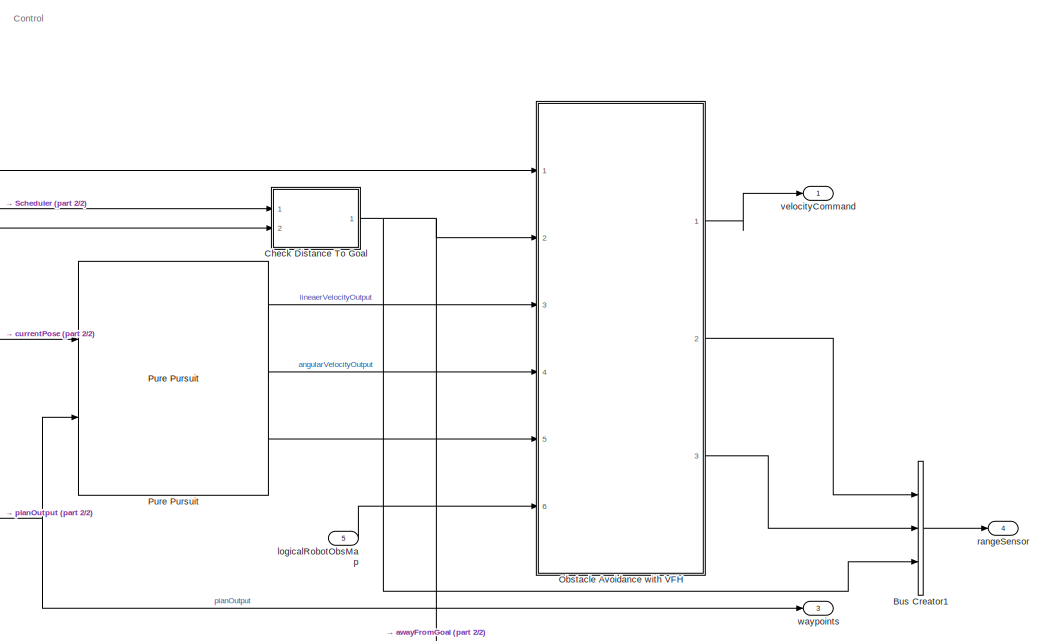
[diagram: root canvas - part 1/2, right side, full height]
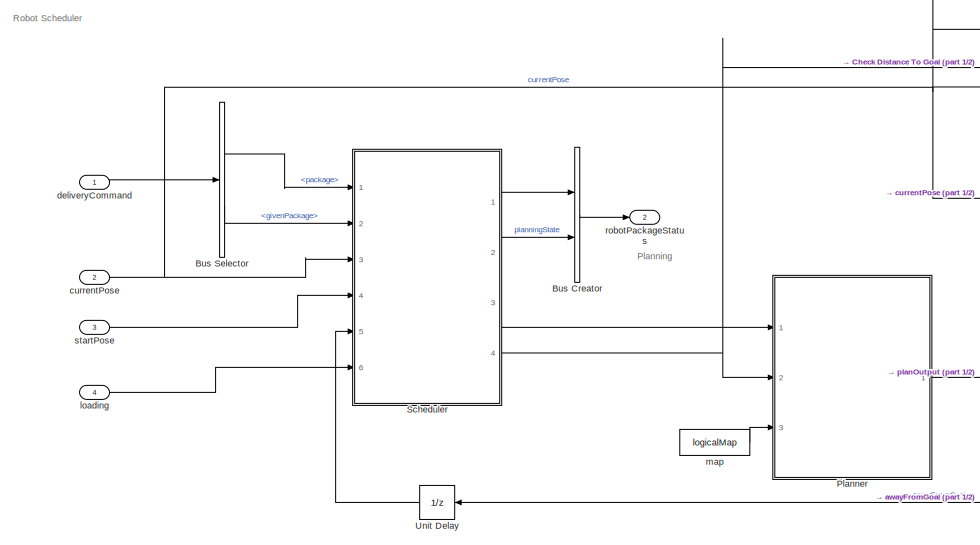
[diagram: root canvas - part 2/2, left side, full height]
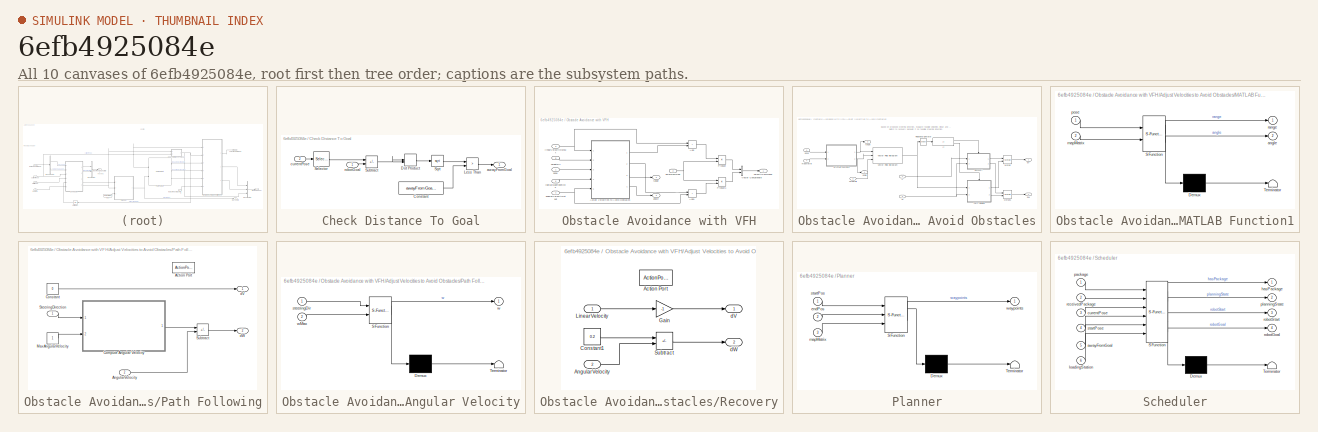
[diagram: thumbnail index - all 10 canvases of the model, root first then tree order]
MODEL slx_6efb4925084e
KIND model
CONFIG AbsTol = auto
CONFIG EnableMultiTasking = off
CONFIG FixedStep = 0.1
CONFIG InitFcn = set_param('robotController', 'ForceConsistencyChecking', 'off');
CONFIG MaxStep = auto
CONFIG MinStep = auto
CONFIG PostLoadFcn = set_param(gcs, 'ForceConsistencyChecking', 'off');
CONFIG RelTol = 1e-3
CONFIG SampleTimeConstraint = Unconstrained
CONFIG SolverName = FixedStepAuto
CONFIG StartTime = 0.0
CONFIG StopTime = 10.0
BLOCK [BusCreator] Bus Creator
  DisplayOption = bar
  InheritFromInputs = off
  Inputs = 2
  NonVirtualBus = on
  OutDataTypeStr = Bus: RobotPackageStatus
  Ports = [2, 1]
BLOCK [BusCreator] Bus Creator1
  DisplayOption = bar
  InheritFromInputs = on
  Inputs = 3
  NonVirtualBus = on
  OutDataTypeStr = Bus: RangeSensor
  Ports = [3, 1]
BLOCK [BusSelector] Bus Selector
  OutputSignals = package,givenPackage
  Ports = [1, 2]
BLOCK [SubSystem] Check Distance To Goal
  Ports = [2, 1]
  RequestExecContextInheritance = off
BLOCK [Constant] Check Distance To Goal/Constant
  Value = awayFromGoalThresh
BLOCK [DotProduct] Check Distance To Goal/Dot Product
  OutDataTypeStr = Inherit: Inherit via internal rule
BLOCK [RelationalOperator] Check Distance To Goal/Less Than
  InputSameDT = off
  Operator = >
  OutDataTypeStr = boolean
  Ports = [2, 1]
  RndMeth = Simplest
BLOCK [Selector] Check Distance To Goal/Selector
  IndexOptions = Index vector (dialog)
  Indices = [1 2]
  InputPortWidth = 3
  OutputSizes = 1
  Ports = [1, 1]
BLOCK [Sqrt] Check Distance To Goal/Sqrt
BLOCK [Sum] Check Distance To Goal/Subtract
  IconShape = rectangular
  Inputs = +-
  Ports = [2, 1]
BLOCK [Outport] Check Distance To Goal/awayFromGoal
  OutDataTypeStr = boolean
BLOCK [Inport] Check Distance To Goal/currentPose
  Port = 2
BLOCK [Inport] Check Distance To Goal/robotGoal
BLOCK [SubSystem] Obstacle Avoidance with VFH
  Ports = [6, 3]
  RequestExecContextInheritance = off
BLOCK [Sum] Obstacle Avoidance with VFH/Add
  IconShape = rectangular
  Ports = [2, 1]
BLOCK [Sum] Obstacle Avoidance with VFH/Add1
  IconShape = rectangular
  Ports = [2, 1]
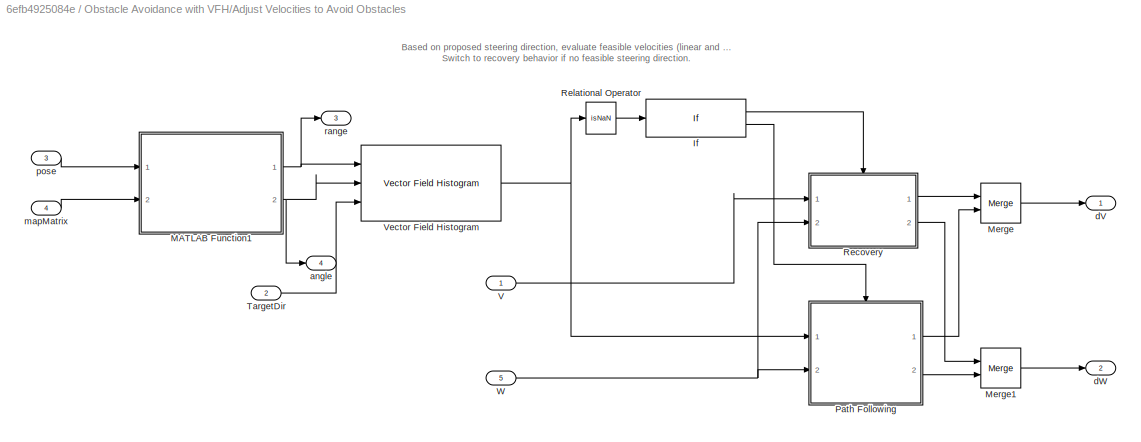
BLOCK [SubSystem] Obstacle Avoidance with VFH/Adjust Velocities to Avoid Obstacles
  Ports = [5, 4]
  RequestExecContextInheritance = off
BLOCK [If] Obstacle Avoidance with VFH/Adjust Velocities to Avoid Obstacles/If
  IfExpression = u1 == 1
  Ports = [1, 2]
BLOCK [SubSystem] Obstacle Avoidance with VFH/Adjust Velocities to Avoid Obstacles/MATLAB Function1
  ErrorFcn = Stateflow.Translate.translate
  PermitHierarchicalResolution = ExplicitOnly
  Ports = [2, 2]
  RequestExecContextInheritance = off
  SFBlockType = MATLAB Function
  TreatAsAtomicUnit = on
BLOCK [Demux] Obstacle Avoidance with VFH/Adjust Velocities to Avoid Obstacles/MATLAB Function1/ Demux 
  Outputs = 1
  Ports = [1, 1]
BLOCK [S-Function] Obstacle Avoidance with VFH/Adjust Velocities to Avoid Obstacles/MATLAB Function1/ SFunction 
  EnableBusSupport = on
  FunctionName = sf_sfun
  PortCounts = [2 3]
  Ports = [2, 3]
  SFcnIsStateOwnerBlock = off
  SFunctionDeploymentMode = off
  Tag = Stateflow S-Function 4
BLOCK [Terminator] Obstacle Avoidance with VFH/Adjust Velocities to Avoid Obstacles/MATLAB Function1/ Terminator 
BLOCK [Outport] Obstacle Avoidance with VFH/Adjust Velocities to Avoid Obstacles/MATLAB Function1/angle
  Port = 2
BLOCK [Inport] Obstacle Avoidance with VFH/Adjust Velocities to Avoid Obstacles/MATLAB Function1/mapMatrix
  Port = 2
BLOCK [Inport] Obstacle Avoidance with VFH/Adjust Velocities to Avoid Obstacles/MATLAB Function1/pose
BLOCK [Outport] Obstacle Avoidance with VFH/Adjust Velocities to Avoid Obstacles/MATLAB Function1/range
BLOCK [Merge] Obstacle Avoidance with VFH/Adjust Velocities to Avoid Obstacles/Merge
  Ports = [2, 1]
BLOCK [Merge] Obstacle Avoidance with VFH/Adjust Velocities to Avoid Obstacles/Merge1
  Ports = [2, 1]
BLOCK [SubSystem] Obstacle Avoidance with VFH/Adjust Velocities to Avoid Obstacles/Path Following
  Ports = [2, 2, 0, 0, 0, 0, 0, 1]
  RequestExecContextInheritance = off
  TreatAsAtomicUnit = on
BLOCK [ActionPort] Obstacle Avoidance with VFH/Adjust Velocities to Avoid Obstacles/Path Following/Action Port
  ActionPortLabel = else
BLOCK [Inport] Obstacle Avoidance with VFH/Adjust Velocities to Avoid Obstacles/Path Following/AngularVelocity
  Port = 2
BLOCK [SubSystem] Obstacle Avoidance with VFH/Adjust Velocities to Avoid Obstacles/Path Following/Compute Angular Velocity
  ErrorFcn = Stateflow.Translate.translate
  PermitHierarchicalResolution = ExplicitOnly
  Ports = [2, 1]
  RequestExecContextInheritance = off
  SFBlockType = MATLAB Function
  TreatAsAtomicUnit = on
BLOCK [Demux] Obstacle Avoidance with VFH/Adjust Velocities to Avoid Obstacles/Path Following/Compute Angular Velocity/ Demux 
  Outputs = 1
  Ports = [1, 1]
BLOCK [S-Function] Obstacle Avoidance with VFH/Adjust Velocities to Avoid Obstacles/Path Following/Compute Angular Velocity/ SFunction 
  EnableBusSupport = on
  FunctionName = sf_sfun
  PortCounts = [2 2]
  Ports = [2, 2]
  SFcnIsStateOwnerBlock = off
  SFunctionDeploymentMode = off
  Tag = Stateflow S-Function 5
BLOCK [Terminator] Obstacle Avoidance with VFH/Adjust Velocities to Avoid Obstacles/Path Following/Compute Angular Velocity/ Terminator 
BLOCK [Inport] Obstacle Avoidance with VFH/Adjust Velocities to Avoid Obstacles/Path Following/Compute Angular Velocity/steeringDir
BLOCK [Outport] Obstacle Avoidance with VFH/Adjust Velocities to Avoid Obstacles/Path Following/Compute Angular Velocity/w
  VectorParamsAs1DForOutWhenUnconnected = off
BLOCK [Inport] Obstacle Avoidance with VFH/Adjust Velocities to Avoid Obstacles/Path Following/Compute Angular Velocity/wMax
  Port = 2
BLOCK [Constant] Obstacle Avoidance with VFH/Adjust Velocities to Avoid Obstacles/Path Following/Constant
  Value = 0
BLOCK [Constant] Obstacle Avoidance with VFH/Adjust Velocities to Avoid Obstacles/Path Following/MaxAngularVelocity
BLOCK [Inport] Obstacle Avoidance with VFH/Adjust Velocities to Avoid Obstacles/Path Following/SteeringDirection
BLOCK [Sum] Obstacle Avoidance with VFH/Adjust Velocities to Avoid Obstacles/Path Following/Subtract
  IconShape = rectangular
  Inputs = +-
  Ports = [2, 1]
BLOCK [Outport] Obstacle Avoidance with VFH/Adjust Velocities to Avoid Obstacles/Path Following/dV
  VectorParamsAs1DForOutWhenUnconnected = off
BLOCK [Outport] Obstacle Avoidance with VFH/Adjust Velocities to Avoid Obstacles/Path Following/dW
  Port = 2
  VectorParamsAs1DForOutWhenUnconnected = off
BLOCK [SubSystem] Obstacle Avoidance with VFH/Adjust Velocities to Avoid Obstacles/Recovery
  Ports = [2, 2, 0, 0, 0, 0, 0, 1]
  RequestExecContextInheritance = off
  TreatAsAtomicUnit = on
BLOCK [ActionPort] Obstacle Avoidance with VFH/Adjust Velocities to Avoid Obstacles/Recovery/Action Port
  ActionPortLabel = if(u1 == 1)
BLOCK [Inport] Obstacle Avoidance with VFH/Adjust Velocities to Avoid Obstacles/Recovery/AngularVelocity
  Port = 2
BLOCK [Constant] Obstacle Avoidance with VFH/Adjust Velocities to Avoid Obstacles/Recovery/Constant1
  Value = 0.2
BLOCK [Gain] Obstacle Avoidance with VFH/Adjust Velocities to Avoid Obstacles/Recovery/Gain
  Gain = -1
BLOCK [Inport] Obstacle Avoidance with VFH/Adjust Velocities to Avoid Obstacles/Recovery/LinearVelocity
BLOCK [Sum] Obstacle Avoidance with VFH/Adjust Velocities to Avoid Obstacles/Recovery/Subtract
  IconShape = rectangular
  Inputs = +-
  Ports = [2, 1]
BLOCK [Outport] Obstacle Avoidance with VFH/Adjust Velocities to Avoid Obstacles/Recovery/dV
  VectorParamsAs1DForOutWhenUnconnected = off
BLOCK [Outport] Obstacle Avoidance with VFH/Adjust Velocities to Avoid Obstacles/Recovery/dW
  Port = 2
  VectorParamsAs1DForOutWhenUnconnected = off
BLOCK [RelationalOperator] Obstacle Avoidance with VFH/Adjust Velocities to Avoid Obstacles/Relational Operator
  InputSameDT = off
  Operator = isNaN
  OutDataTypeStr = boolean
  Ports = [1, 1]
  RndMeth = Simplest
BLOCK [Inport] Obstacle Avoidance with VFH/Adjust Velocities to Avoid Obstacles/TargetDir
  Port = 2
BLOCK [Inport] Obstacle Avoidance with VFH/Adjust Velocities to Avoid Obstacles/V
BLOCK [Reference] Obstacle Avoidance with VFH/Adjust Velocities to Avoid Obstacles/Vector Field Histogram  REF=robotalgslib/Vector Field Histogram
  Ports = [3, 1]
  SourceBlock = robotalgslib/Vector Field Histogram
  SourceProductBaseCode = NV,RO
  SourceType = nav.slalgs.internal.VectorFieldHistogram
BLOCK [Inport] Obstacle Avoidance with VFH/Adjust Velocities to Avoid Obstacles/W
  Port = 5
BLOCK [Outport] Obstacle Avoidance with VFH/Adjust Velocities to Avoid Obstacles/angle
  Port = 4
  VectorParamsAs1DForOutWhenUnconnected = off
BLOCK [Outport] Obstacle Avoidance with VFH/Adjust Velocities to Avoid Obstacles/dV
  VectorParamsAs1DForOutWhenUnconnected = off
BLOCK [Outport] Obstacle Avoidance with VFH/Adjust Velocities to Avoid Obstacles/dW
  Port = 2
  VectorParamsAs1DForOutWhenUnconnected = off
BLOCK [Inport] Obstacle Avoidance with VFH/Adjust Velocities to Avoid Obstacles/mapMatrix
  Port = 4
BLOCK [Inport] Obstacle Avoidance with VFH/Adjust Velocities to Avoid Obstacles/pose
  Port = 3
BLOCK [Outport] Obstacle Avoidance with VFH/Adjust Velocities to Avoid Obstacles/range
  Port = 3
  VectorParamsAs1DForOutWhenUnconnected = off
BLOCK [Product] Obstacle Avoidance with VFH/Product
  Ports = [2, 1]
BLOCK [Product] Obstacle Avoidance with VFH/Product1
  Ports = [2, 1]
BLOCK [Inport] Obstacle Avoidance with VFH/TargetDir
  Port = 5
BLOCK [Concatenate] Obstacle Avoidance with VFH/Vector Concatenate
  Ports = [2, 1]
BLOCK [Outport] Obstacle Avoidance with VFH/angle
  Port = 3
BLOCK [Inport] Obstacle Avoidance with VFH/angularVelocityOutput
  Port = 4
BLOCK [Inport] Obstacle Avoidance with VFH/awayFromGoal
  OutDataTypeStr = boolean
  Port = 2
BLOCK [Inport] Obstacle Avoidance with VFH/linearVelocityOutput
  Port = 3
BLOCK [Inport] Obstacle Avoidance with VFH/logicalMapRobotObs
  Port = 6
BLOCK [Inport] Obstacle Avoidance with VFH/pose
BLOCK [Outport] Obstacle Avoidance with VFH/range
  Port = 2
BLOCK [Outport] Obstacle Avoidance with VFH/velocityCommand
  OutDataTypeStr = double
BLOCK [SubSystem] Planner
  ErrorFcn = Stateflow.Translate.translate
  PermitHierarchicalResolution = ExplicitOnly
  Ports = [3, 1]
  RequestExecContextInheritance = off
  SFBlockType = MATLAB Function
  TreatAsAtomicUnit = on
BLOCK [Demux] Planner/ Demux 
  Outputs = 1
  Ports = [1, 1]
BLOCK [S-Function] Planner/ SFunction 
  EnableBusSupport = on
  FunctionName = sf_sfun
  PortCounts = [3 2]
  Ports = [3, 2]
  SFcnIsStateOwnerBlock = off
  SFunctionDeploymentMode = off
  Tag = Stateflow S-Function 1
BLOCK [Terminator] Planner/ Terminator 
BLOCK [Inport] Planner/endPos
  Port = 2
BLOCK [Inport] Planner/mapMatrix
  Port = 3
BLOCK [Inport] Planner/startPos
BLOCK [Outport] Planner/waypoints
  VectorParamsAs1DForOutWhenUnconnected = off
BLOCK [Reference] Pure Pursuit  REF=robotalgslib/Pure Pursuit
  Ports = [2, 3]
  SourceBlock = robotalgslib/Pure Pursuit
  SourceProductBaseCode = NV,RO
  SourceType = nav.slalgs.internal.PurePursuit
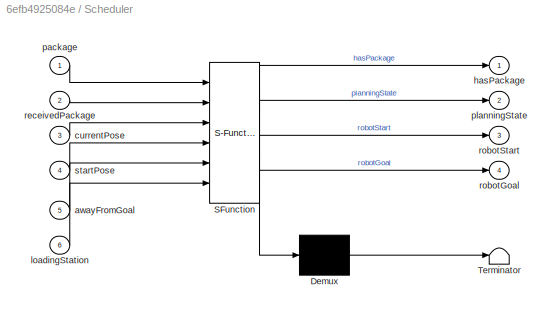
BLOCK [SubSystem] Scheduler
  ErrorFcn = Stateflow.Translate.translate
  PermitHierarchicalResolution = ExplicitOnly
  Ports = [6, 4]
  Priority = 2
  RequestExecContextInheritance = off
  SFBlockType = Chart
BLOCK [Demux] Scheduler/ Demux 
  Outputs = 1
  Ports = [1, 1]
BLOCK [S-Function] Scheduler/ SFunction 
  EnableBusSupport = on
  FunctionName = sf_sfun
  Parameters = unloadingStations
  PortCounts = [6 5]
  Ports = [6, 5]
  SFcnIsStateOwnerBlock = off
  SFunctionDeploymentMode = off
  Tag = Stateflow S-Function 2
BLOCK [Terminator] Scheduler/ Terminator 
BLOCK [Inport] Scheduler/awayFromGoal
  Port = 5
BLOCK [Inport] Scheduler/currentPose
  Port = 3
BLOCK [Outport] Scheduler/hasPackage
  VectorParamsAs1DForOutWhenUnconnected = off
BLOCK [Inport] Scheduler/loadingStation
  Port = 6
BLOCK [Inport] Scheduler/package
BLOCK [Outport] Scheduler/planningState
  Port = 2
  VectorParamsAs1DForOutWhenUnconnected = off
BLOCK [Inport] Scheduler/receivedPackage
  Port = 2
BLOCK [Outport] Scheduler/robotGoal
  Port = 4
  VectorParamsAs1DForOutWhenUnconnected = off
BLOCK [Outport] Scheduler/robotStart
  Port = 3
  VectorParamsAs1DForOutWhenUnconnected = off
BLOCK [Inport] Scheduler/startPose
  Port = 4
BLOCK [UnitDelay] Unit Delay
  HasFrameUpgradeWarning = on
  NameLocation = top
  SampleTime = -1
BLOCK [Inport] currentPose
  Port = 2
  PortDimensions = [3, 1]
BLOCK [Inport] deliveryCommand
  BusOutputAsStruct = on
  OutDataTypeStr = Bus: RobotDeliverCommand
BLOCK [Inport] loading
  Port = 4
BLOCK [Inport] logicalRobotObsMap
  OutDataTypeStr = boolean
  Port = 5
  PortDimensions = [100,100]
BLOCK [Constant] map
  Value = logicalMap
BLOCK [Outport] rangeSensor
  BusOutputAsStruct = on
  OutDataTypeStr = Bus: RangeSensor
  Port = 4
BLOCK [Outport] robotPackageStatus
  BusOutputAsStruct = on
  OutDataTypeStr = Bus: RobotPackageStatus
  Port = 2
BLOCK [Inport] startPose
  Port = 3
BLOCK [Outport] velocityCommand
BLOCK [Outport] waypoints
  Port = 3
ANNOTATION (root): Control
ANNOTATION (root): Planning
ANNOTATION (root): Robot Scheduler
ANNOTATION Obstacle Avoidance with VFH/Adjust Velocities to Avoid Obstacles: Based on proposed steering direction, evaluate feasible velocities (linear and angular). Switch to recovery behavior if no feasible steering direction.
LINE Bus Creator1:1 -> rangeSensor:1
LINE Bus Creator:1 -> robotPackageStatus:1
LINE Bus Selector:1 -> Scheduler:1
LINE Bus Selector:2 -> Scheduler:2
LINE Check Distance To Goal/Constant:1 -> Check Distance To Goal/Less Than:2
LINE Check Distance To Goal/Dot Product:1 -> Check Distance To Goal/Sqrt:1
LINE Check Distance To Goal/Less Than:1 -> Check Distance To Goal/awayFromGoal:1
LINE Check Distance To Goal/Selector:1 -> Check Distance To Goal/Subtract:1
LINE Check Distance To Goal/Sqrt:1 -> Check Distance To Goal/Less Than:1
NET Check Distance To Goal/Subtract:1 -> Check Distance To Goal/Dot Product:1, Check Distance To Goal/Dot Product:2
LINE Check Distance To Goal/currentPose:1 -> Check Distance To Goal/Selector:1
LINE Check Distance To Goal/robotGoal:1 -> Check Distance To Goal/Subtract:2
NET Check Distance To Goal:1 -> Bus Creator1:3, Obstacle Avoidance with VFH:2, Unit Delay:1
LINE Obstacle Avoidance with VFH/Add1:1 -> Obstacle Avoidance with VFH/Product1:2
LINE Obstacle Avoidance with VFH/Add:1 -> Obstacle Avoidance with VFH/Product:1
LINE Obstacle Avoidance with VFH/Adjust Velocities to Avoid Obstacles/If:1 -> Obstacle Avoidance with VFH/Adjust Velocities to Avoid Obstacles/Recovery:ifaction
LINE Obstacle Avoidance with VFH/Adjust Velocities to Avoid Obstacles/If:2 -> Obstacle Avoidance with VFH/Adjust Velocities to Avoid Obstacles/Path Following:ifaction
NET Obstacle Avoidance with VFH/Adjust Velocities to Avoid Obstacles/MATLAB Function1:1 -> Obstacle Avoidance with VFH/Adjust Velocities to Avoid Obstacles/Vector Field Histogram:1, Obstacle Avoidance with VFH/Adjust Velocities to Avoid Obstacles/range:1
NET Obstacle Avoidance with VFH/Adjust Velocities to Avoid Obstacles/MATLAB Function1:2 -> Obstacle Avoidance with VFH/Adjust Velocities to Avoid Obstacles/Vector Field Histogram:2, Obstacle Avoidance with VFH/Adjust Velocities to Avoid Obstacles/angle:1
LINE Obstacle Avoidance with VFH/Adjust Velocities to Avoid Obstacles/Merge1:1 -> Obstacle Avoidance with VFH/Adjust Velocities to Avoid Obstacles/dW:1
LINE Obstacle Avoidance with VFH/Adjust Velocities to Avoid Obstacles/Merge:1 -> Obstacle Avoidance with VFH/Adjust Velocities to Avoid Obstacles/dV:1
LINE Obstacle Avoidance with VFH/Adjust Velocities to Avoid Obstacles/Path Following/AngularVelocity:1 -> Obstacle Avoidance with VFH/Adjust Velocities to Avoid Obstacles/Path Following/Subtract:2
LINE Obstacle Avoidance with VFH/Adjust Velocities to Avoid Obstacles/Path Following/Compute Angular Velocity:1 -> Obstacle Avoidance with VFH/Adjust Velocities to Avoid Obstacles/Path Following/Subtract:1
LINE Obstacle Avoidance with VFH/Adjust Velocities to Avoid Obstacles/Path Following/Constant:1 -> Obstacle Avoidance with VFH/Adjust Velocities to Avoid Obstacles/Path Following/dV:1
LINE Obstacle Avoidance with VFH/Adjust Velocities to Avoid Obstacles/Path Following/MaxAngularVelocity:1 -> Obstacle Avoidance with VFH/Adjust Velocities to Avoid Obstacles/Path Following/Compute Angular Velocity:2
LINE Obstacle Avoidance with VFH/Adjust Velocities to Avoid Obstacles/Path Following/SteeringDirection:1 -> Obstacle Avoidance with VFH/Adjust Velocities to Avoid Obstacles/Path Following/Compute Angular Velocity:1
LINE Obstacle Avoidance with VFH/Adjust Velocities to Avoid Obstacles/Path Following/Subtract:1 -> Obstacle Avoidance with VFH/Adjust Velocities to Avoid Obstacles/Path Following/dW:1
LINE Obstacle Avoidance with VFH/Adjust Velocities to Avoid Obstacles/Path Following:1 -> Obstacle Avoidance with VFH/Adjust Velocities to Avoid Obstacles/Merge:2
LINE Obstacle Avoidance with VFH/Adjust Velocities to Avoid Obstacles/Path Following:2 -> Obstacle Avoidance with VFH/Adjust Velocities to Avoid Obstacles/Merge1:2
LINE Obstacle Avoidance with VFH/Adjust Velocities to Avoid Obstacles/Recovery/AngularVelocity:1 -> Obstacle Avoidance with VFH/Adjust Velocities to Avoid Obstacles/Recovery/Subtract:2
LINE Obstacle Avoidance with VFH/Adjust Velocities to Avoid Obstacles/Recovery/Constant1:1 -> Obstacle Avoidance with VFH/Adjust Velocities to Avoid Obstacles/Recovery/Subtract:1
LINE Obstacle Avoidance with VFH/Adjust Velocities to Avoid Obstacles/Recovery/Gain:1 -> Obstacle Avoidance with VFH/Adjust Velocities to Avoid Obstacles/Recovery/dV:1
LINE Obstacle Avoidance with VFH/Adjust Velocities to Avoid Obstacles/Recovery/LinearVelocity:1 -> Obstacle Avoidance with VFH/Adjust Velocities to Avoid Obstacles/Recovery/Gain:1
LINE Obstacle Avoidance with VFH/Adjust Velocities to Avoid Obstacles/Recovery/Subtract:1 -> Obstacle Avoidance with VFH/Adjust Velocities to Avoid Obstacles/Recovery/dW:1
LINE Obstacle Avoidance with VFH/Adjust Velocities to Avoid Obstacles/Recovery:1 -> Obstacle Avoidance with VFH/Adjust Velocities to Avoid Obstacles/Merge:1
LINE Obstacle Avoidance with VFH/Adjust Velocities to Avoid Obstacles/Recovery:2 -> Obstacle Avoidance with VFH/Adjust Velocities to Avoid Obstacles/Merge1:1
LINE Obstacle Avoidance with VFH/Adjust Velocities to Avoid Obstacles/Relational Operator:1 -> Obstacle Avoidance with VFH/Adjust Velocities to Avoid Obstacles/If:1
LINE Obstacle Avoidance with VFH/Adjust Velocities to Avoid Obstacles/TargetDir:1 -> Obstacle Avoidance with VFH/Adjust Velocities to Avoid Obstacles/Vector Field Histogram:3
LINE Obstacle Avoidance with VFH/Adjust Velocities to Avoid Obstacles/V:1 -> Obstacle Avoidance with VFH/Adjust Velocities to Avoid Obstacles/Recovery:1
NET Obstacle Avoidance with VFH/Adjust Velocities to Avoid Obstacles/Vector Field Histogram:1 -> Obstacle Avoidance with VFH/Adjust Velocities to Avoid Obstacles/Path Following:1, Obstacle Avoidance with VFH/Adjust Velocities to Avoid Obstacles/Relational Operator:1
NET Obstacle Avoidance with VFH/Adjust Velocities to Avoid Obstacles/W:1 -> Obstacle Avoidance with VFH/Adjust Velocities to Avoid Obstacles/Path Following:2, Obstacle Avoidance with VFH/Adjust Velocities to Avoid Obstacles/Recovery:2
LINE Obstacle Avoidance with VFH/Adjust Velocities to Avoid Obstacles/mapMatrix:1 -> Obstacle Avoidance with VFH/Adjust Velocities to Avoid Obstacles/MATLAB Function1:2
LINE Obstacle Avoidance with VFH/Adjust Velocities to Avoid Obstacles/pose:1 -> Obstacle Avoidance with VFH/Adjust Velocities to Avoid Obstacles/MATLAB Function1:1
LINE Obstacle Avoidance with VFH/Adjust Velocities to Avoid Obstacles:1 -> Obstacle Avoidance with VFH/Add:2
LINE Obstacle Avoidance with VFH/Adjust Velocities to Avoid Obstacles:2 -> Obstacle Avoidance with VFH/Add1:1
LINE Obstacle Avoidance with VFH/Adjust Velocities to Avoid Obstacles:3 -> Obstacle Avoidance with VFH/range:1
LINE Obstacle Avoidance with VFH/Adjust Velocities to Avoid Obstacles:4 -> Obstacle Avoidance with VFH/angle:1
LINE Obstacle Avoidance with VFH/Product1:1 -> Obstacle Avoidance with VFH/Vector Concatenate:2
LINE Obstacle Avoidance with VFH/Product:1 -> Obstacle Avoidance with VFH/Vector Concatenate:1
LINE Obstacle Avoidance with VFH/TargetDir:1 -> Obstacle Avoidance with VFH/Adjust Velocities to Avoid Obstacles:2
LINE Obstacle Avoidance with VFH/Vector Concatenate:1 -> Obstacle Avoidance with VFH/velocityCommand:1
NET Obstacle Avoidance with VFH/angularVelocityOutput:1 -> Obstacle Avoidance with VFH/Add1:2, Obstacle Avoidance with VFH/Adjust Velocities to Avoid Obstacles:5
NET Obstacle Avoidance with VFH/awayFromGoal:1 -> Obstacle Avoidance with VFH/Product1:1, Obstacle Avoidance with VFH/Product:2
NET Obstacle Avoidance with VFH/linearVelocityOutput:1 -> Obstacle Avoidance with VFH/Add:1, Obstacle Avoidance with VFH/Adjust Velocities to Avoid Obstacles:1
LINE Obstacle Avoidance with VFH/logicalMapRobotObs:1 -> Obstacle Avoidance with VFH/Adjust Velocities to Avoid Obstacles:4
LINE Obstacle Avoidance with VFH/pose:1 -> Obstacle Avoidance with VFH/Adjust Velocities to Avoid Obstacles:3
LINE Obstacle Avoidance with VFH:1 -> velocityCommand:1
LINE Obstacle Avoidance with VFH:2 -> Bus Creator1:1
LINE Obstacle Avoidance with VFH:3 -> Bus Creator1:2
NET Planner:1 -> Pure Pursuit:2, waypoints:1
LINE Pure Pursuit:1 -> Obstacle Avoidance with VFH:3
LINE Pure Pursuit:2 -> Obstacle Avoidance with VFH:4
LINE Pure Pursuit:3 -> Obstacle Avoidance with VFH:5
LINE Scheduler:1 -> Bus Creator:1
LINE Scheduler:2 -> Bus Creator:2
LINE Scheduler:3 -> Planner:1
NET Scheduler:4 -> Check Distance To Goal:1, Planner:2
LINE Unit Delay:1 -> Scheduler:5
NET currentPose:1 -> Check Distance To Goal:2, Obstacle Avoidance with VFH:1, Pure Pursuit:1, Scheduler:3
LINE deliveryCommand:1 -> Bus Selector:1
LINE loading:1 -> Scheduler:6
LINE logicalRobotObsMap:1 -> Obstacle Avoidance with VFH:6
LINE map:1 -> Planner:3
LINE startPose:1 -> Scheduler:4
note: NET lines group one-source signal fan-out (src -> all destinations, sorted); 1:1 wires keep LINE
CHART Planner states=1 transitions=1
  STATE_LABEL 'eML_blk_kernel()'
  STATE_LABEL 'SCRIPT:\nfunction waypoints = planning(startPos, endPos, mapMatrix)\n\npersistent waypointsInternal\npersistent prevStartPos\npersistent prevEndPos\n\n% Set constant parameters\nmaxNumNodes = 100;\n\n% Initialize persistent variables that are used downstream\nif isempty(prevStartPos)\n    prevStartPos = startPos;\nend\n\nif isempty(prevEndPos)\n    prevEndPos = endPos;\nend\n\nisNewPath = (~isequal(prevStartPos, sta...<+1130ch>'
CHART Scheduler states=4 transitions=9
  STATE_LABEL "GoToUnloadingStation\nentry:\nrobotGoal = unloadingStations(package, :)';\nrobotStart = currentPose(1:2)';"
  STATE_LABEL "GoToLoadingStation\nentry:\nrobotGoal = loadingStation';\nrobotStart = currentPose(1:2)';"
  STATE_LABEL 'StationHalt\nentry, during:\n'
  STATE_LABEL "GoToChargingStation\nentry:\nrobotGoal = startPose';\nrobotStart = currentPose(1:2)';"
CHART Obstacle Avoidance with VFH/Adjust Velocities to Avoid Obstacles/MATLAB Function1 states=1 transitions=1
  STATE_LABEL 'eML_blk_kernel()'
  STATE_LABEL "SCRIPT:\nfunction [range, angle]  = RangeSensor(pose, mapMatrix)\npersistent r\nif isempty(r)\n r = rangeSensor('HorizontalAngle', [-pi/2, pi/2], 'HorizontalAngleResolution', pi/20, 'Range', [0 12]);\nend\n% remove the obstacle defined in robot's pose\nobs_grid = world2grid(binaryOccupancyMap(mapMatrix), pose(1:2)');\nmapMatrix(obs_grid(1), obs_grid(2)) = false;\n[range, angle] = r(pose', binaryOccupancyMa...<+23ch>"
CHART Obstacle Avoidance with VFH/Adjust Velocities to Avoid Obstacles/Path Following/Compute Angular Velocity states=1 transitions=1
  STATE_LABEL 'eML_blk_kernel()'
  STATE_LABEL "SCRIPT:\nfunction w = ComputeAngularVelocity(steeringDir, wMax)\n\n% Allow variable input arguments\nif nargin == 1   \n    wMax = inf;\nend\n\nvalidateattributes(steeringDir, {'double'},{'real'},...\n    'exampleHelperComputeAngularVelocity', 'STEERINGDIR', 1);\nvalidateattributes(wMax, {'double'},{'real', 'positive'},...\n    'exampleHelperComputeAngularVelocity', 'WMAX', 2);\n\n% Computing in robot's coordi...<+615ch>"
CHART  states=0 transitions=0
CHART  states=0 transitions=0
CHART  states=0 transitions=0
CHART  states=0 transitions=0
